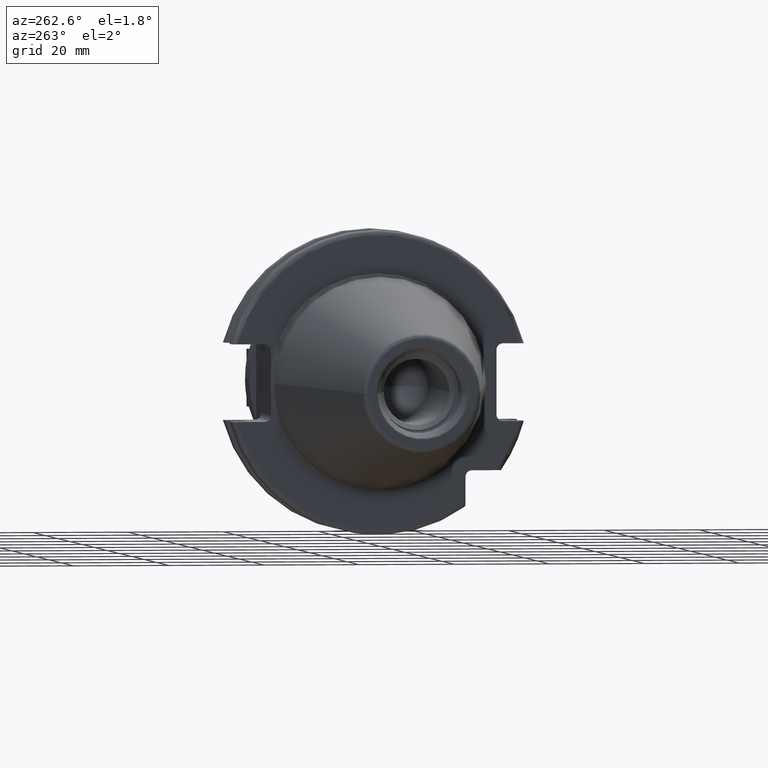
[diagram: clean part render]
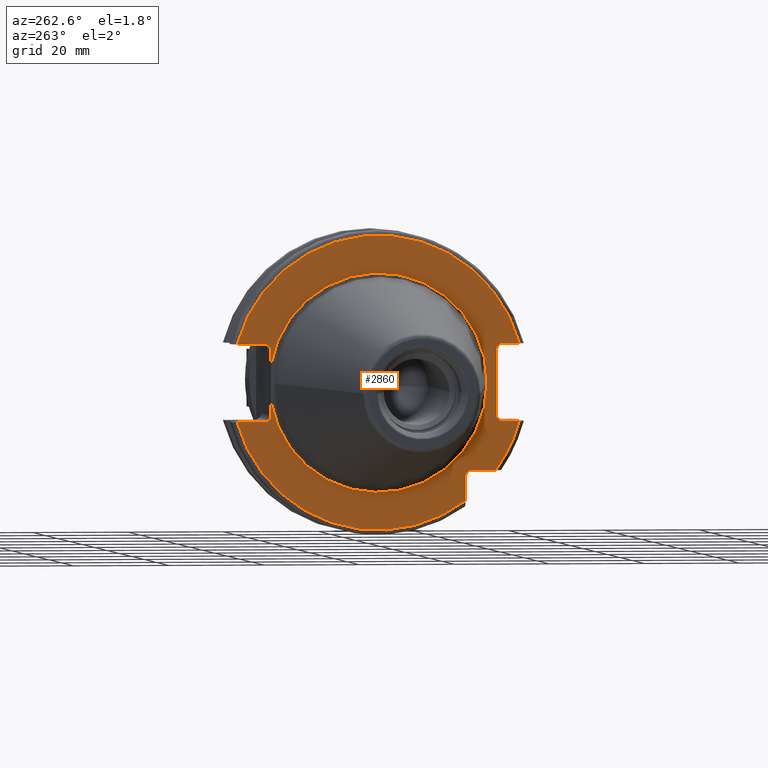
[diagram: same view with one face highlighted and labeled with its STEP entity id]
A machine part, auxiliary view. The second image highlights one B-rep face of the part: STEP entity #2860.
In plain terms, the highlighted planar face has unit normal (1, 0, 0).
Its self-contained STEP definition (entity closure, byte-faithful):
#105=CARTESIAN_POINT('',(3.2E0,2.255E1,-3.842281223440E0));
#117=CARTESIAN_POINT('',(3.2E0,0.E0,0.E0));
#118=DIRECTION('',(-1.E0,0.E0,0.E0));
#119=DIRECTION('',(0.E0,9.857923497268E-1,-1.679685780739E-1));
#120=AXIS2_PLACEMENT_3D('',#117,#118,#119);
#142=CARTESIAN_POINT('',(3.2E0,2.39E1,-6.75E0));
#143=DIRECTION('',(1.E0,0.E0,0.E0));
#144=DIRECTION('',(0.E0,-1.E0,0.E0));
#145=AXIS2_PLACEMENT_3D('',#142,#143,#144);
#199=CARTESIAN_POINT('',(3.2E0,2.39E1,6.75E0));
#200=DIRECTION('',(1.E0,0.E0,0.E0));
#201=DIRECTION('',(0.E0,0.E0,1.E0));
#202=AXIS2_PLACEMENT_3D('',#199,#200,#201);
#244=CARTESIAN_POINT('',(3.2E0,-2.62E1,6.75E0));
#245=DIRECTION('',(1.E0,0.E0,0.E0));
#246=DIRECTION('',(0.E0,1.E0,0.E0));
#247=AXIS2_PLACEMENT_3D('',#244,#245,#246);
#622=CARTESIAN_POINT('',(3.2E0,-2.62E1,-6.75E0));
#623=DIRECTION('',(1.E0,0.E0,0.E0));
#624=DIRECTION('',(0.E0,0.E0,-1.E0));
#625=AXIS2_PLACEMENT_3D('',#622,#623,#624);
#689=DIRECTION('',(0.E0,0.E0,-1.E0));
#690=VECTOR('',#689,2.907718776560E0);
#691=CARTESIAN_POINT('',(3.2E0,2.255E1,6.75E0));
#692=LINE('',#691,#690);
#693=DIRECTION('',(0.E0,-1.E0,0.E0));
#694=VECTOR('',#693,5.776950757280E0);
#695=CARTESIAN_POINT('',(3.2E0,2.967695075728E1,8.1E0));
#696=LINE('',#695,#694);
#697=CARTESIAN_POINT('',(3.2E0,0.E0,0.E0));
#698=DIRECTION('',(1.E0,0.E0,0.E0));
#699=DIRECTION('',(0.E0,9.647119303464E-1,2.633075985372E-1));
#700=AXIS2_PLACEMENT_3D('',#697,#698,#699);
#702=DIRECTION('',(0.E0,1.E0,0.E0));
#703=VECTOR('',#702,3.476950757280E0);
#704=CARTESIAN_POINT('',(3.2E0,-2.967695075728E1,8.1E0));
#705=LINE('',#704,#703);
#706=DIRECTION('',(0.E0,0.E0,1.E0));
#707=VECTOR('',#706,1.35E1);
#708=CARTESIAN_POINT('',(3.2E0,-2.485E1,-6.75E0));
#709=LINE('',#708,#707);
#710=DIRECTION('',(0.E0,1.E0,0.E0));
#711=VECTOR('',#710,3.476950757280E0);
#712=CARTESIAN_POINT('',(3.2E0,-2.967695075728E1,-8.1E0));
#713=LINE('',#712,#711);
#714=CARTESIAN_POINT('',(3.2E0,0.E0,0.E0));
#715=DIRECTION('',(-1.E0,0.E0,0.E0));
#716=DIRECTION('',(0.E0,-8.026089992512E-1,-5.965054855750E-1));
#717=AXIS2_PLACEMENT_3D('',#714,#715,#716);
#719=DIRECTION('',(0.E0,-1.E0,0.E0));
#720=VECTOR('',#719,4.990259339464E0);
#721=CARTESIAN_POINT('',(3.2E0,-1.97E1,-1.835E1));
#722=LINE('',#721,#720);
#723=DIRECTION('',(0.E0,0.E0,1.E0));
#724=VECTOR('',#723,4.990259339464E0);
#725=CARTESIAN_POINT('',(3.2E0,-1.835E1,-2.469025933946E1));
#726=LINE('',#725,#724);
#727=CARTESIAN_POINT('',(3.2E0,0.E0,0.E0));
#728=DIRECTION('',(-1.E0,0.E0,0.E0));
#729=DIRECTION('',(0.E0,9.647119303464E-1,-2.633075985372E-1));
#730=AXIS2_PLACEMENT_3D('',#727,#728,#729);
#732=DIRECTION('',(0.E0,-1.E0,0.E0));
#733=VECTOR('',#732,5.776950757280E0);
#734=CARTESIAN_POINT('',(3.2E0,2.967695075728E1,-8.1E0));
#735=LINE('',#734,#733);
#736=DIRECTION('',(0.E0,0.E0,-1.E0));
#737=VECTOR('',#736,2.907718776560E0);
#738=CARTESIAN_POINT('',(3.2E0,2.255E1,-3.842281223440E0));
#739=LINE('',#738,#737);
#749=CARTESIAN_POINT('',(3.2E0,2.967695075728E1,8.1E0));
#756=CARTESIAN_POINT('',(3.2E0,-2.967695075728E1,8.1E0));
#1176=CARTESIAN_POINT('',(3.2E0,2.967695075728E1,-8.1E0));
#1212=CARTESIAN_POINT('',(3.2E0,-2.967695075728E1,-8.1E0));
#1239=CARTESIAN_POINT('',(3.2E0,-1.97E1,-1.97E1));
#1240=DIRECTION('',(1.E0,0.E0,0.E0));
#1241=DIRECTION('',(0.E0,1.E0,0.E0));
#1242=AXIS2_PLACEMENT_3D('',#1239,#1240,#1241);
#1310=CARTESIAN_POINT('',(3.2E0,2.255E1,3.842281223440E0));
#1321=CARTESIAN_POINT('',(3.2E0,0.E0,0.E0));
#1322=DIRECTION('',(1.E0,0.E0,0.E0));
#1323=DIRECTION('',(0.E0,9.857923497268E-1,1.679685780739E-1));
#1324=AXIS2_PLACEMENT_3D('',#1321,#1322,#1323);
#1544=CARTESIAN_POINT('',(3.2E0,-2.2875E1,0.E0));
#1546=VERTEX_POINT('',#1544);
#1686=VERTEX_POINT('',#1310);
#1688=VERTEX_POINT('',#105);
#1691=VERTEX_POINT('',#749);
#1692=VERTEX_POINT('',#756);
#1695=VERTEX_POINT('',#1176);
#1696=VERTEX_POINT('',#1212);
#1711=CARTESIAN_POINT('',(3.2E0,-1.835E1,-2.469025933946E1));
#1712=VERTEX_POINT('',#1711);
#1714=CARTESIAN_POINT('',(3.2E0,2.39E1,-8.1E0));
#1716=VERTEX_POINT('',#1714);
#1718=CARTESIAN_POINT('',(3.2E0,2.39E1,8.1E0));
#1720=VERTEX_POINT('',#1718);
#1722=CARTESIAN_POINT('',(3.2E0,-2.485E1,-6.75E0));
#1724=VERTEX_POINT('',#1722);
#1726=CARTESIAN_POINT('',(3.2E0,-2.62E1,-8.1E0));
#1728=VERTEX_POINT('',#1726);
#1730=CARTESIAN_POINT('',(3.2E0,-2.62E1,8.1E0));
#1732=VERTEX_POINT('',#1730);
#1734=CARTESIAN_POINT('',(3.2E0,-2.485E1,6.75E0));
#1736=VERTEX_POINT('',#1734);
#1743=CARTESIAN_POINT('',(3.2E0,2.255E1,6.75E0));
#1744=VERTEX_POINT('',#1743);
#1745=CARTESIAN_POINT('',(3.2E0,2.255E1,-6.75E0));
#1746=VERTEX_POINT('',#1745);
#1747=CARTESIAN_POINT('',(3.2E0,-1.97E1,-1.835E1));
#1748=CARTESIAN_POINT('',(3.2E0,-2.469025933946E1,-1.835E1));
#1749=VERTEX_POINT('',#1747);
#1750=VERTEX_POINT('',#1748);
#1751=CARTESIAN_POINT('',(3.2E0,-1.835E1,-1.97E1));
#1752=VERTEX_POINT('',#1751);
#2827=CARTESIAN_POINT('',(3.2E0,0.E0,0.E0));
#2828=DIRECTION('',(1.E0,0.E0,0.E0));
#2829=DIRECTION('',(0.E0,-1.E0,0.E0));
#2830=AXIS2_PLACEMENT_3D('',#2827,#2828,#2829);
#2831=PLANE('',#2830);
#2832=ORIENTED_EDGE('',*,*,#2034,.F.);
#2833=ORIENTED_EDGE('',*,*,#2120,.F.);
#2834=ORIENTED_EDGE('',*,*,#2155,.F.);
#2836=ORIENTED_EDGE('',*,*,#2835,.T.);
#2837=ORIENTED_EDGE('',*,*,#2181,.T.);
#2838=ORIENTED_EDGE('',*,*,#2217,.F.);
#2839=ORIENTED_EDGE('',*,*,#2233,.F.);
#2840=ORIENTED_EDGE('',*,*,#2726,.F.);
#2841=ORIENTED_EDGE('',*,*,#2760,.F.);
#2843=ORIENTED_EDGE('',*,*,#2842,.F.);
#2845=ORIENTED_EDGE('',*,*,#2844,.F.);
#2847=ORIENTED_EDGE('',*,*,#2846,.F.);
#2849=ORIENTED_EDGE('',*,*,#2848,.F.);
#2851=ORIENTED_EDGE('',*,*,#2850,.F.);
#2852=ORIENTED_EDGE('',*,*,#2800,.T.);
#2853=ORIENTED_EDGE('',*,*,#2052,.F.);
#2854=ORIENTED_EDGE('',*,*,#2039,.F.);
#2855=ORIENTED_EDGE('',*,*,#2006,.T.);
#2857=ORIENTED_EDGE('',*,*,#2856,.F.);
#2858=EDGE_LOOP('',(#2832,#2833,#2834,#2836,#2837,#2838,#2839,#2840,#2841,#2843,
#2845,#2847,#2849,#2851,#2852,#2853,#2854,#2855,#2857));
#2859=FACE_OUTER_BOUND('',#2858,.F.);
#2860=ADVANCED_FACE('',(#2859),#2831,.F.);
#121=CIRCLE('',#120,2.2875E1);
#146=CIRCLE('',#145,1.35E0);
#203=CIRCLE('',#202,1.35E0);
#248=CIRCLE('',#247,1.35E0);
#626=CIRCLE('',#625,1.35E0);
#701=CIRCLE('',#700,3.07625E1);
#718=CIRCLE('',#717,3.07625E1);
#731=CIRCLE('',#730,3.07625E1);
#1243=CIRCLE('',#1242,1.35E0);
#1325=CIRCLE('',#1324,2.2875E1);
#2006=EDGE_CURVE('',#1688,#1546,#121,.T.);
#2034=EDGE_CURVE('',#1744,#1686,#692,.T.);
#2039=EDGE_CURVE('',#1688,#1746,#739,.T.);
#2052=EDGE_CURVE('',#1746,#1716,#146,.T.);
#2120=EDGE_CURVE('',#1720,#1744,#203,.T.);
#2155=EDGE_CURVE('',#1691,#1720,#696,.T.);
#2181=EDGE_CURVE('',#1692,#1732,#705,.T.);
#2217=EDGE_CURVE('',#1736,#1732,#248,.T.);
#2233=EDGE_CURVE('',#1724,#1736,#709,.T.);
#2726=EDGE_CURVE('',#1728,#1724,#626,.T.);
#2760=EDGE_CURVE('',#1696,#1728,#713,.T.);
#2800=EDGE_CURVE('',#1695,#1716,#735,.T.);
#2835=EDGE_CURVE('',#1691,#1692,#701,.T.);
#2842=EDGE_CURVE('',#1750,#1696,#718,.T.);
#2844=EDGE_CURVE('',#1749,#1750,#722,.T.);
#2846=EDGE_CURVE('',#1752,#1749,#1243,.T.);
#2848=EDGE_CURVE('',#1712,#1752,#726,.T.);
#2850=EDGE_CURVE('',#1695,#1712,#731,.T.);
#2856=EDGE_CURVE('',#1686,#1546,#1325,.T.);